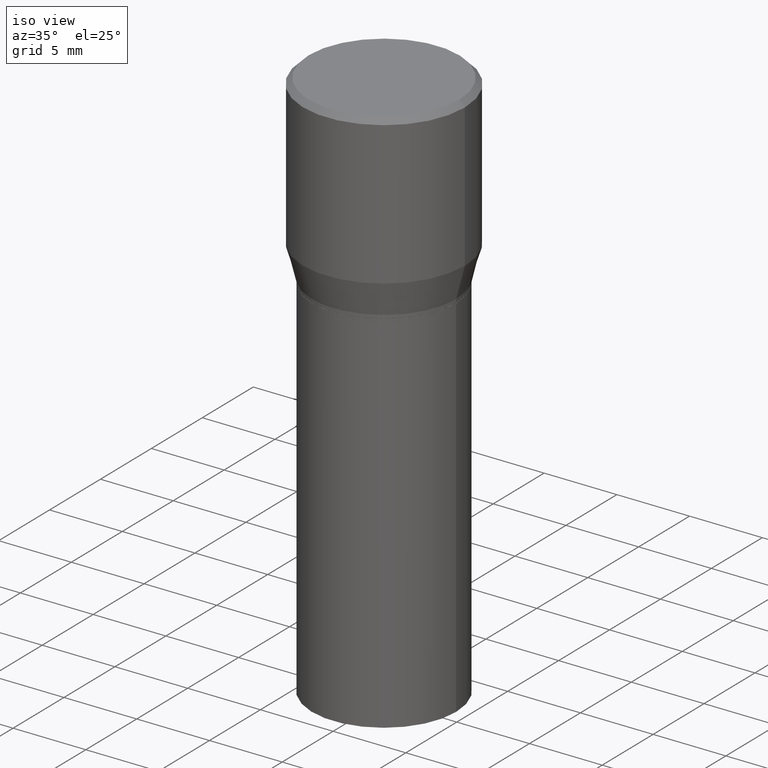
[diagram: clean part render]
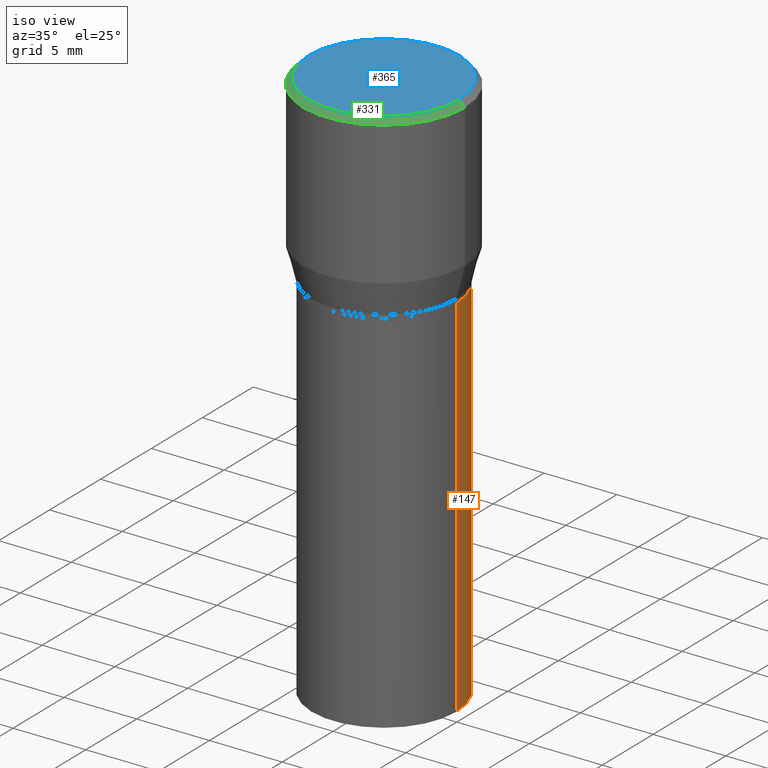
[diagram: same view with three faces highlighted in distinct colors, each labeled with its STEP entity id]
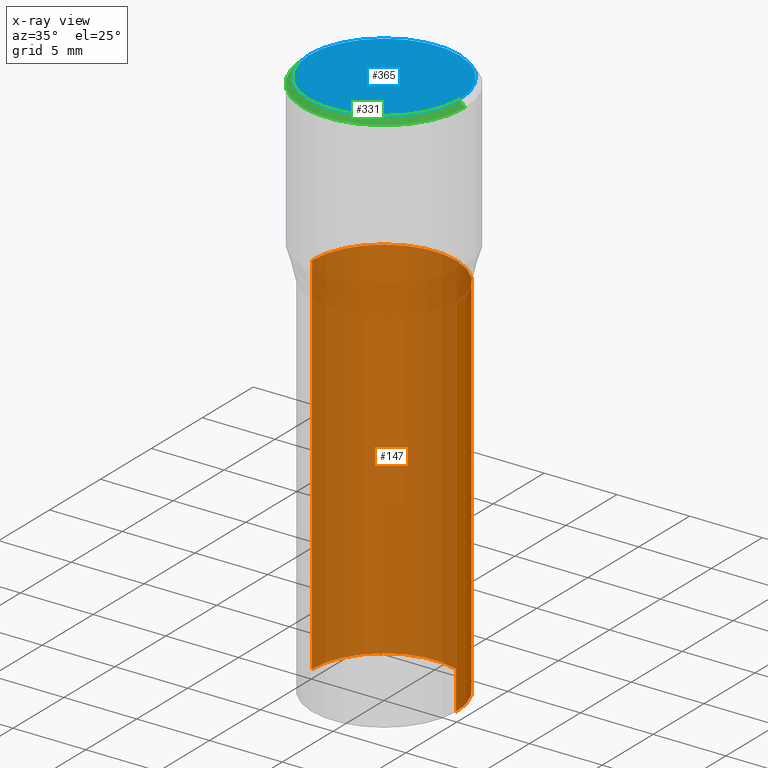
[diagram: x-ray of the same camera — body ghosted, the three highlighted faces saturated]
A machine part, iso view with three faces highlighted in distinct colors.
The next image is the same camera in x-ray (body ghosted, the three faces saturated) — at least one of them is partly hidden behind the body in this view.
Their STEP definitions:

[orange] entity #147 — the highlighted cylindrical surface (partial cylindrical patch) has radius 4.9606 mm, axis along (-0, 0, 1).
#4 = CARTESIAN_POINT ( 'NONE',  ( -0.1953000000000000014, -2.103791375903670501E-15, -1.500000000000000222 ) ) ;
#7 = CIRCLE ( 'NONE', #125, 0.1953000000000000014 ) ;
#33 = AXIS2_PLACEMENT_3D ( 'NONE', #311, #309, #242 ) ;
#37 = LINE ( 'NONE', #457, #76 ) ;
#54 = CIRCLE ( 'NONE', #33, 0.1953000000000000014 ) ;
#63 = DIRECTION ( 'NONE',  ( -2.445468806185136877E-29, 3.491481338843145188E-15, 1.000000000000000000 ) ) ;
#66 = VERTEX_POINT ( 'NONE', #436 ) ;
#70 = VERTEX_POINT ( 'NONE', #75 ) ;
#75 = CARTESIAN_POINT ( 'NONE',  ( -0.1953000000000000014, -2.103791375903670501E-15, -0.5000000000000001110 ) ) ;
#76 = VECTOR ( 'NONE', #188, 39.37007874015748143 ) ;
#94 = CYLINDRICAL_SURFACE ( 'NONE', #237, 0.1953000000000000014 ) ;
#111 = EDGE_CURVE ( 'NONE', #210, #70, #54, .T. ) ;
#125 = AXIS2_PLACEMENT_3D ( 'NONE', #395, #456, #358 ) ;
#144 = ORIENTED_EDGE ( 'NONE', *, *, #155, .F. ) ;
#146 = CARTESIAN_POINT ( 'NONE',  ( 0.1953000000000000014, -3.109513280373700880E-15, -0.5000000000000001110 ) ) ;
#147 = ADVANCED_FACE ( 'NONE', ( #382 ), #94, .T. ) ;
#155 = EDGE_CURVE ( 'NONE', #66, #210, #389, .T. ) ;
#168 = VECTOR ( 'NONE', #63, 39.37007874015748143 ) ;
#188 = DIRECTION ( 'NONE',  ( -2.445468806185136877E-29, 3.491481338843145188E-15, 1.000000000000000000 ) ) ;
#210 = VERTEX_POINT ( 'NONE', #146 ) ;
#228 = EDGE_CURVE ( 'NONE', #66, #350, #7, .T. ) ;
#237 = AXIS2_PLACEMENT_3D ( 'NONE', #344, #321, #462 ) ;
#242 = DIRECTION ( 'NONE',  ( 1.000000000000000000, -6.982962677686264344E-15, 0.000000000000000000 ) ) ;
#245 = EDGE_CURVE ( 'NONE', #350, #70, #37, .T. ) ;
#291 = CARTESIAN_POINT ( 'NONE',  ( 0.1953000000000000014, -1.363772610952127695E-15, 9.523173243129462177E-30 ) ) ;
#303 = ORIENTED_EDGE ( 'NONE', *, *, #245, .T. ) ;
#309 = DIRECTION ( 'NONE',  ( -2.445468806185136597E-29, 3.491481338843145583E-15, 1.000000000000000000 ) ) ;
#311 = CARTESIAN_POINT ( 'NONE',  ( 1.222734403092568719E-29, -1.745740669421573186E-15, -0.5000000000000001110 ) ) ;
#321 = DIRECTION ( 'NONE',  ( -2.445468806185136597E-29, 3.491481338843145583E-15, 1.000000000000000000 ) ) ;
#344 = CARTESIAN_POINT ( 'NONE',  ( 0.000000000000000000, 0.000000000000000000, 0.000000000000000000 ) ) ;
#350 = VERTEX_POINT ( 'NONE', #4 ) ;
#358 = DIRECTION ( 'NONE',  ( 1.000000000000000000, -6.982962677686269077E-15, 0.000000000000000000 ) ) ;
#362 = ORIENTED_EDGE ( 'NONE', *, *, #228, .T. ) ;
#369 = ORIENTED_EDGE ( 'NONE', *, *, #111, .F. ) ;
#382 = FACE_OUTER_BOUND ( 'NONE', #438, .T. ) ;
#389 = LINE ( 'NONE', #291, #168 ) ;
#395 = CARTESIAN_POINT ( 'NONE',  ( 3.668203209277704895E-29, -5.237222008264718177E-15, -1.500000000000000222 ) ) ;
#436 = CARTESIAN_POINT ( 'NONE',  ( 0.1953000000000000014, -6.600994619216846463E-15, -1.500000000000000222 ) ) ;
#438 = EDGE_LOOP ( 'NONE', ( #362, #303, #369, #144 ) ) ;
#456 = DIRECTION ( 'NONE',  ( -2.445468806185136597E-29, 3.491481338843145583E-15, 1.000000000000000000 ) ) ;
#457 = CARTESIAN_POINT ( 'NONE',  ( -0.1953000000000000014, 1.387689962939475673E-15, -9.606680231267831797E-30 ) ) ;
#462 = DIRECTION ( 'NONE',  ( 1.000000000000000000, -6.982962677686265922E-15, 4.876176775795935793E-29 ) ) ;

[blue] entity #365 — the highlighted planar face has unit normal (0, -0, -1).
#11 = ORIENTED_EDGE ( 'NONE', *, *, #136, .T. ) ;
#17 = AXIS2_PLACEMENT_3D ( 'NONE', #450, #308, #277 ) ;
#21 = CARTESIAN_POINT ( 'NONE',  ( -2.592568563193567003E-45, 3.701500806376036554E-31, 1.060151966214568974E-16 ) ) ;
#41 = DIRECTION ( 'NONE',  ( 2.438088387897960049E-29, -3.491481338843145188E-15, -1.000000000000000000 ) ) ;
#53 = ORIENTED_EDGE ( 'NONE', *, *, #133, .T. ) ;
#82 = VERTEX_POINT ( 'NONE', #117 ) ;
#114 = FACE_OUTER_BOUND ( 'NONE', #234, .T. ) ;
#117 = CARTESIAN_POINT ( 'NONE',  ( 0.2037499999999999867, -1.475466312070559275E-15, 1.060151966214670170E-16 ) ) ;
#133 = EDGE_CURVE ( 'NONE', #82, #225, #334, .T. ) ;
#136 = EDGE_CURVE ( 'NONE', #225, #82, #412, .T. ) ;
#159 = DIRECTION ( 'NONE',  ( -1.000000000000000000, 6.982962677686265922E-15, -4.876176775795935793E-29 ) ) ;
#174 = DIRECTION ( 'NONE',  ( -2.445468806185136597E-29, 3.491481338843145583E-15, 1.000000000000000000 ) ) ;
#225 = VERTEX_POINT ( 'NONE', #287 ) ;
#233 = CARTESIAN_POINT ( 'NONE',  ( 1.422778645578576487E-15, 0.2037499999999999867, -6.583817244785623957E-16 ) ) ;
#234 = EDGE_LOOP ( 'NONE', ( #11, #53 ) ) ;
#244 = DIRECTION ( 'NONE',  ( 1.000000000000000000, -6.982962677686266711E-15, 4.875065411617369217E-29 ) ) ;
#247 = AXIS2_PLACEMENT_3D ( 'NONE', #233, #41, #159 ) ;
#277 = DIRECTION ( 'NONE',  ( 1.000000000000000000, -6.982962677686266711E-15, 4.875065411617369217E-29 ) ) ;
#287 = CARTESIAN_POINT ( 'NONE',  ( -0.2037499999999999867, 1.448964755619900421E-15, 1.060151966214468518E-16 ) ) ;
#308 = DIRECTION ( 'NONE',  ( -2.445468806185136597E-29, 3.491481338843145583E-15, 1.000000000000000000 ) ) ;
#334 = CIRCLE ( 'NONE', #17, 0.2037499999999999867 ) ;
#365 = ADVANCED_FACE ( 'NONE', ( #114 ), #439, .F. ) ;
#412 = CIRCLE ( 'NONE', #452, 0.2037499999999999867 ) ;
#439 = PLANE ( 'NONE',  #247 ) ;
#450 = CARTESIAN_POINT ( 'NONE',  ( -2.592568563193567003E-45, 3.701500806376036554E-31, 1.060151966214568974E-16 ) ) ;
#452 = AXIS2_PLACEMENT_3D ( 'NONE', #21, #174, #244 ) ;

[green] entity #331 — the highlighted conical surface has half-angle 45 deg.
#21 = CARTESIAN_POINT ( 'NONE',  ( -2.592568563193567003E-45, 3.701500806376036554E-31, 1.060151966214568974E-16 ) ) ;
#26 = ORIENTED_EDGE ( 'NONE', *, *, #300, .T. ) ;
#43 = CIRCLE ( 'NONE', #313, 0.2187500000000000000 ) ;
#47 = EDGE_CURVE ( 'NONE', #82, #312, #239, .T. ) ;
#48 = EDGE_CURVE ( 'NONE', #306, #312, #43, .T. ) ;
#51 = CARTESIAN_POINT ( 'NONE',  ( 3.668203209277705088E-31, -5.237222008264718399E-17, -0.01499999999999999944 ) ) ;
#77 = CARTESIAN_POINT ( 'NONE',  ( 0.2187500000000000000, -1.579895305826517922E-15, -0.01499999999999999944 ) ) ;
#79 = DIRECTION ( 'NONE',  ( -0.7071067811865452413, 2.468850131082233000E-15, -0.7071067811865497932 ) ) ;
#82 = VERTEX_POINT ( 'NONE', #117 ) ;
#110 = DIRECTION ( 'NONE',  ( -2.445468806185136597E-29, 3.491481338843145583E-15, 1.000000000000000000 ) ) ;
#117 = CARTESIAN_POINT ( 'NONE',  ( 0.2037499999999999867, -1.475466312070559275E-15, 1.060151966214670170E-16 ) ) ;
#136 = EDGE_CURVE ( 'NONE', #225, #82, #412, .T. ) ;
#157 = CARTESIAN_POINT ( 'NONE',  ( 0.2187500000000000000, -1.553106157095169608E-15, -0.01499999999999999944 ) ) ;
#172 = DIRECTION ( 'NONE',  ( 2.445468806185136597E-29, -3.491481338843145583E-15, -1.000000000000000000 ) ) ;
#174 = DIRECTION ( 'NONE',  ( -2.445468806185136597E-29, 3.491481338843145583E-15, 1.000000000000000000 ) ) ;
#183 = EDGE_LOOP ( 'NONE', ( #199, #419, #26, #187 ) ) ;
#187 = ORIENTED_EDGE ( 'NONE', *, *, #48, .T. ) ;
#199 = ORIENTED_EDGE ( 'NONE', *, *, #47, .F. ) ;
#225 = VERTEX_POINT ( 'NONE', #287 ) ;
#239 = LINE ( 'NONE', #157, #451 ) ;
#244 = DIRECTION ( 'NONE',  ( 1.000000000000000000, -6.982962677686266711E-15, 4.875065411617369217E-29 ) ) ;
#246 = DIRECTION ( 'NONE',  ( -1.000000000000000000, 6.982962677686266711E-15, 0.000000000000000000 ) ) ;
#261 = DIRECTION ( 'NONE',  ( 1.000000000000000000, -6.982962677686266711E-15, 0.000000000000000000 ) ) ;
#287 = CARTESIAN_POINT ( 'NONE',  ( -0.2037499999999999867, 1.448964755619900421E-15, 1.060151966214468518E-16 ) ) ;
#300 = EDGE_CURVE ( 'NONE', #225, #306, #432, .T. ) ;
#306 = VERTEX_POINT ( 'NONE', #367 ) ;
#312 = VERTEX_POINT ( 'NONE', #77 ) ;
#313 = AXIS2_PLACEMENT_3D ( 'NONE', #51, #110, #261 ) ;
#314 = VECTOR ( 'NONE', #79, 39.37007874015748143 ) ;
#331 = ADVANCED_FACE ( 'NONE', ( #352 ), #386, .T. ) ;
#345 = CARTESIAN_POINT ( 'NONE',  ( 3.668203209277705088E-31, -5.237222008264718399E-17, -0.01499999999999999944 ) ) ;
#352 = FACE_OUTER_BOUND ( 'NONE', #183, .T. ) ;
#367 = CARTESIAN_POINT ( 'NONE',  ( -0.2187500000000000000, 8.254944693389027239E-16, -0.01499999999999999944 ) ) ;
#376 = DIRECTION ( 'NONE',  ( 0.7071067811865452413, -7.319954787623248157E-15, -0.7071067811865497932 ) ) ;
#386 = CONICAL_SURFACE ( 'NONE', #444, 0.2187500000000000000, 0.7853981633974450594 ) ;
#405 = CARTESIAN_POINT ( 'NONE',  ( -0.2187500000000000000, 1.475150865661223567E-15, -0.01499999999999999944 ) ) ;
#412 = CIRCLE ( 'NONE', #452, 0.2037499999999999867 ) ;
#419 = ORIENTED_EDGE ( 'NONE', *, *, #136, .F. ) ;
#432 = LINE ( 'NONE', #405, #314 ) ;
#444 = AXIS2_PLACEMENT_3D ( 'NONE', #345, #172, #246 ) ;
#451 = VECTOR ( 'NONE', #376, 39.37007874015748143 ) ;
#452 = AXIS2_PLACEMENT_3D ( 'NONE', #21, #174, #244 ) ;